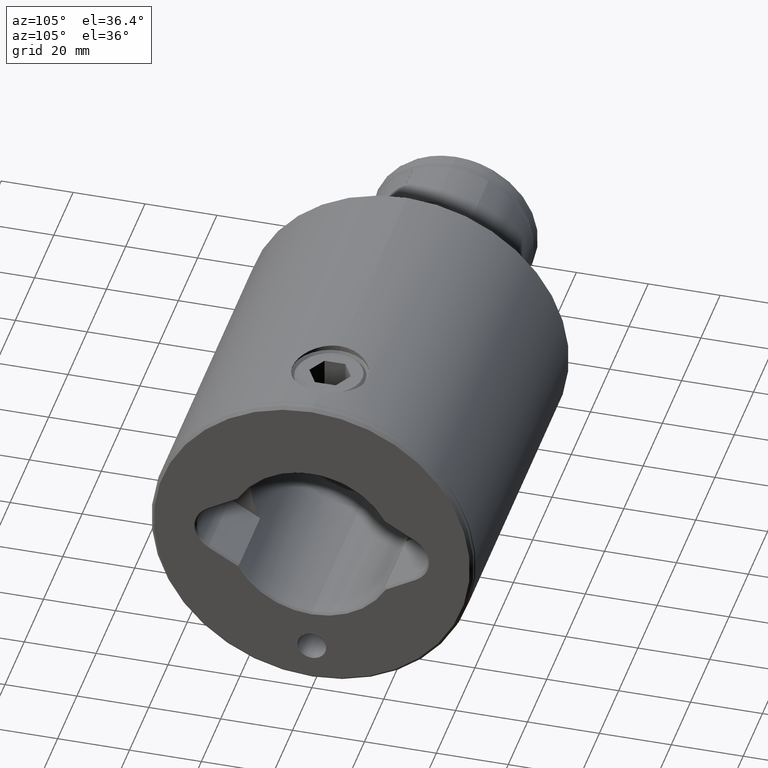
[diagram: clean part render]
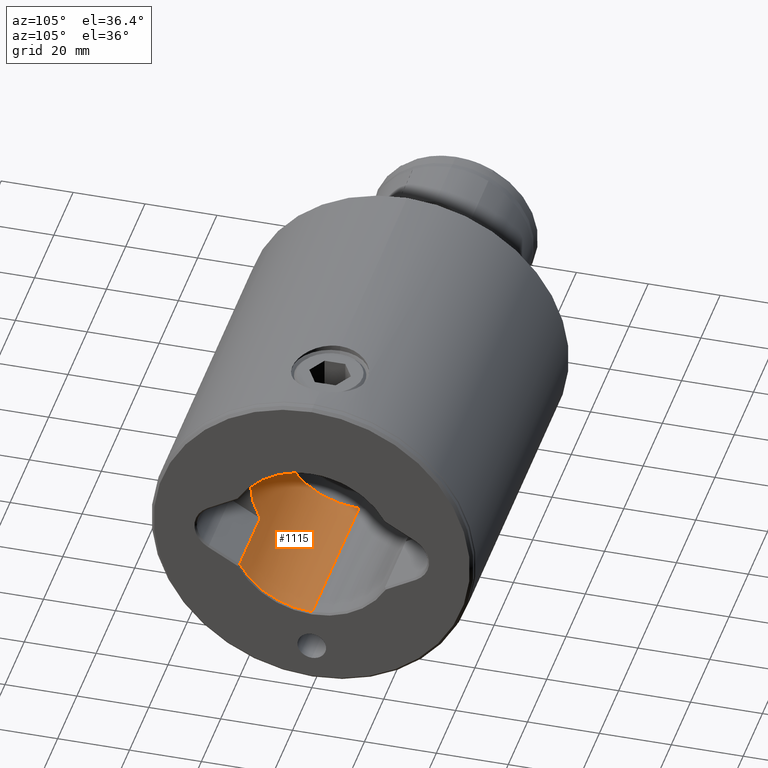
[diagram: same view with one face highlighted and labeled with its STEP entity id]
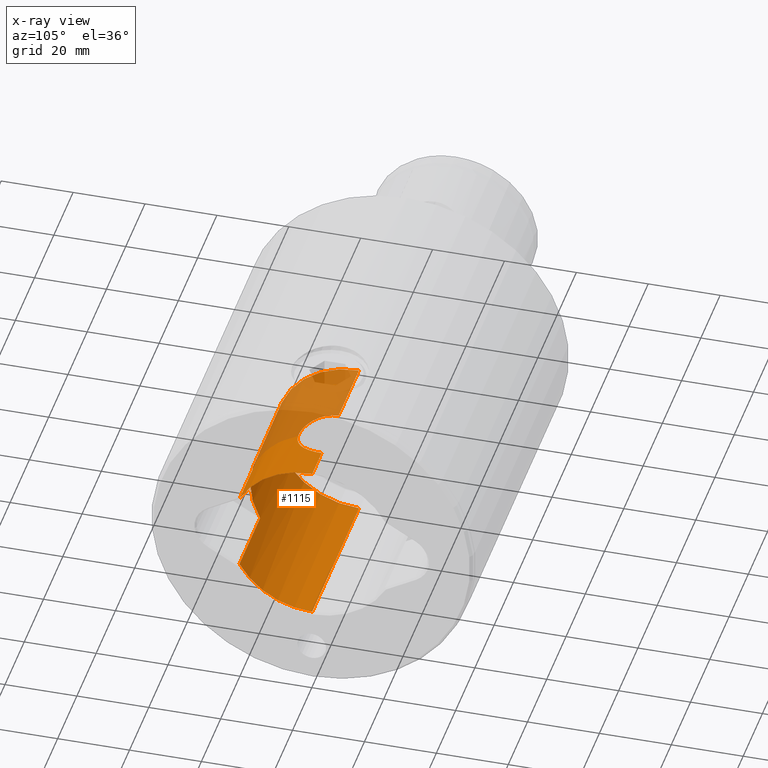
[diagram: x-ray of the same camera — body ghosted, the highlighted face saturated]
A machine part, auxiliary view. The second image highlights one B-rep face of the part: STEP entity #1115.
The next image is the same camera in x-ray: the body ghosted, the highlighted face saturated — about 23% of this face is hidden behind the body in this view.
In plain terms, the highlighted cylindrical surface (partial cylindrical patch) has radius 23 mm, axis along (1, -0, -0).
Its self-contained STEP definition (entity closure, byte-faithful):
#63 = VECTOR ( 'NONE', #3675, 1000.000000000000000 ) ;
#95 = ORIENTED_EDGE ( 'NONE', *, *, #1780, .T. ) ;
#163 = CARTESIAN_POINT ( 'NONE',  ( -23.00000000000000000, 0.0000000000000000000, 0.5000000000000004400 ) ) ;
#262 = AXIS2_PLACEMENT_3D ( 'NONE', #646, #2929, #1775 ) ;
#263 = CARTESIAN_POINT ( 'NONE',  ( 22.71288516212993300, -3.632673777145970700, 27.01544322031126200 ) ) ;
#266 = DIRECTION ( 'NONE',  ( -1.000000000000000000, 0.0000000000000000000, 0.0000000000000000000 ) ) ;
#296 = CARTESIAN_POINT ( 'NONE',  ( 22.88887802677951600, -2.274991333027795500, 10.59604864264739800 ) ) ;
#311 = CARTESIAN_POINT ( 'NONE',  ( 21.62219281856338800, -7.842287163276952600, 15.15860680552610700 ) ) ;
#321 = CIRCLE ( 'NONE', #4365, 23.00000000000000000 ) ;
#391 = CARTESIAN_POINT ( 'NONE',  ( 23.00000000000000000, 2.816687638038912400E-015, 49.00000000000000000 ) ) ;
#431 = ORIENTED_EDGE ( 'NONE', *, *, #2059, .T. ) ;
#471 = AXIS2_PLACEMENT_3D ( 'NONE', #1359, #2141, #1757 ) ;
#566 = LINE ( 'NONE', #2043, #2041 ) ;
#646 = CARTESIAN_POINT ( 'NONE',  ( 0.0000000000000000000, 0.0000000000000000000, 49.00000000000000000 ) ) ;
#650 = VERTEX_POINT ( 'NONE', #3286 ) ;
#665 = CARTESIAN_POINT ( 'NONE',  ( 21.71756673812987900, -7.574158781722401200, 23.44047812966465100 ) ) ;
#698 = CARTESIAN_POINT ( 'NONE',  ( 21.45180685189207600, -8.299114286559399600, 21.88124137616247800 ) ) ;
#717 = CARTESIAN_POINT ( 'NONE',  ( 22.26520714237246800, -5.771678518780896100, 12.46731487507836400 ) ) ;
#722 = VERTEX_POINT ( 'NONE', #1286 ) ;
#738 = CIRCLE ( 'NONE', #471, 23.00000000000000000 ) ;
#849 = VERTEX_POINT ( 'NONE', #391 ) ;
#858 = EDGE_CURVE ( 'NONE', #2560, #722, #321, .T. ) ;
#877 = VECTOR ( 'NONE', #2718, 1000.000000000000000 ) ;
#941 = CIRCLE ( 'NONE', #2143, 23.00000000000000000 ) ;
#1079 = CARTESIAN_POINT ( 'NONE',  ( 22.42825063495070400, -5.102122119146010900, 11.93584695380412200 ) ) ;
#1113 = CARTESIAN_POINT ( 'NONE',  ( 21.76824976902437600, -7.427708185278817200, 23.68375969506325900 ) ) ;
#1115 = ADVANCED_FACE ( 'NONE', ( #4939 ), #4747, .F. ) ;
#1130 = CARTESIAN_POINT ( 'NONE',  ( 22.04073016355848900, -6.586346428075415800, 13.26167871109914600 ) ) ;
#1161 = LINE ( 'NONE', #2313, #4282 ) ;
#1171 = CARTESIAN_POINT ( 'NONE',  ( 23.00000000000000000, 2.816687638038912400E-015, 56.00000000000000000 ) ) ;
#1214 = CARTESIAN_POINT ( 'NONE',  ( 0.0000000000000000000, 0.0000000000000000000, 56.00000000000000000 ) ) ;
#1286 = CARTESIAN_POINT ( 'NONE',  ( 10.91466260670261500, -20.24524981771891400, 22.00000000000000000 ) ) ;
#1359 = CARTESIAN_POINT ( 'NONE',  ( 0.0000000000000000000, 0.0000000000000000000, 0.5000000000000004400 ) ) ;
#1396 = CARTESIAN_POINT ( 'NONE',  ( 0.0000000000000000000, 0.0000000000000000000, 22.00000000000000000 ) ) ;
#1424 = VECTOR ( 'NONE', #2021, 1000.000000000000000 ) ;
#1458 = CARTESIAN_POINT ( 'NONE',  ( 21.36308405999551900, -8.521878816000063100, 17.04398447872623000 ) ) ;
#1476 = CARTESIAN_POINT ( 'NONE',  ( 22.82762974630819000, -2.824118102276766100, 10.76330970397540700 ) ) ;
#1495 = CARTESIAN_POINT ( 'NONE',  ( 23.00000000000000000, -0.2875735190609651200, 27.79999999999999700 ) ) ;
#1509 = CARTESIAN_POINT ( 'NONE',  ( 22.37498361936917100, -5.330274856878553200, 12.10506037980532100 ) ) ;
#1518 = VERTEX_POINT ( 'NONE', #4980 ) ;
#1667 = ORIENTED_EDGE ( 'NONE', *, *, #4434, .T. ) ;
#1757 = DIRECTION ( 'NONE',  ( 1.000000000000000000, 0.0000000000000000000, 0.0000000000000000000 ) ) ;
#1775 = DIRECTION ( 'NONE',  ( -1.000000000000000000, 0.0000000000000000000, 0.0000000000000000000 ) ) ;
#1780 = EDGE_CURVE ( 'NONE', #2444, #2869, #566, .T. ) ;
#1870 = CARTESIAN_POINT ( 'NONE',  ( 21.92870612636586400, -6.945786562761168300, 13.69807058700025400 ) ) ;
#1886 = CARTESIAN_POINT ( 'NONE',  ( 21.92564037432627100, -6.955320391244699300, 24.38913189986337200 ) ) ;
#1903 = CARTESIAN_POINT ( 'NONE',  ( 22.79206663044272200, -3.097410922144091700, 10.86150107023727100 ) ) ;
#1911 = DIRECTION ( 'NONE',  ( 0.0000000000000000000, 0.0000000000000000000, 1.000000000000000000 ) ) ;
#1925 = EDGE_CURVE ( 'NONE', #2560, #1518, #4682, .T. ) ;
#2021 = DIRECTION ( 'NONE',  ( -0.0000000000000000000, -0.0000000000000000000, -1.000000000000000000 ) ) ;
#2041 = VECTOR ( 'NONE', #3747, 1000.000000000000000 ) ;
#2043 = CARTESIAN_POINT ( 'NONE',  ( 23.00000000000000000, 2.816687638038912400E-015, 56.00000000000000000 ) ) ;
#2059 = EDGE_CURVE ( 'NONE', #1518, #2125, #941, .T. ) ;
#2125 = VERTEX_POINT ( 'NONE', #163 ) ;
#2141 = DIRECTION ( 'NONE',  ( 0.0000000000000000000, 0.0000000000000000000, -1.000000000000000000 ) ) ;
#2143 = AXIS2_PLACEMENT_3D ( 'NONE', #4774, #2419, #2806 ) ;
#2183 = EDGE_CURVE ( 'NONE', #4520, #2125, #2404, .T. ) ;
#2221 = CARTESIAN_POINT ( 'NONE',  ( 21.45734177185892500, -8.281947585342653200, 16.21195973305168900 ) ) ;
#2225 = EDGE_CURVE ( 'NONE', #4520, #849, #2278, .T. ) ;
#2251 = CARTESIAN_POINT ( 'NONE',  ( 22.83033668418509900, -2.839297716657105800, 27.34634295005043100 ) ) ;
#2275 = CARTESIAN_POINT ( 'NONE',  ( 22.57681790849747100, -4.399241540183116900, 26.61911899313481600 ) ) ;
#2278 = CIRCLE ( 'NONE', #262, 23.00000000000000000 ) ;
#2289 = CARTESIAN_POINT ( 'NONE',  ( 22.26384805867838100, -5.787694061097093700, 25.63731536623407300 ) ) ;
#2298 = CARTESIAN_POINT ( 'NONE',  ( 23.00000000000000000, 2.816687638038912400E-015, 0.5000000000000004400 ) ) ;
#2313 = CARTESIAN_POINT ( 'NONE',  ( 10.91466260670261700, -20.24524981771891100, 56.00000000000000000 ) ) ;
#2353 = CARTESIAN_POINT ( 'NONE',  ( 23.00000000000000000, 2.816915103184660800E-015, 27.79999999999999400 ) ) ;
#2391 = EDGE_CURVE ( 'NONE', #5036, #2444, #3726, .T. ) ;
#2404 = LINE ( 'NONE', #2907, #63 ) ;
#2419 = DIRECTION ( 'NONE',  ( 0.0000000000000000000, 0.0000000000000000000, -1.000000000000000000 ) ) ;
#2444 = VERTEX_POINT ( 'NONE', #2614 ) ;
#2467 = LINE ( 'NONE', #1171, #1424 ) ;
#2494 = ORIENTED_EDGE ( 'NONE', *, *, #2225, .T. ) ;
#2560 = VERTEX_POINT ( 'NONE', #3926 ) ;
#2614 = CARTESIAN_POINT ( 'NONE',  ( 23.00000000000000000, 9.001787135371156300E-016, 10.30000000000000800 ) ) ;
#2634 = CARTESIAN_POINT ( 'NONE',  ( 21.29429480799158700, -8.692992871643490100, 17.89655202185650400 ) ) ;
#2652 = CARTESIAN_POINT ( 'NONE',  ( 22.58122504471546000, -4.395518414396345700, 11.46295758531618100 ) ) ;
#2663 = CARTESIAN_POINT ( 'NONE',  ( 23.00000000000000000, 2.816915103184660800E-015, 27.79999999999999400 ) ) ;
#2680 = EDGE_LOOP ( 'NONE', ( #2494, #3110, #3135, #95, #4781, #1667, #3360, #3732, #431, #4457 ) ) ;
#2718 = DIRECTION ( 'NONE',  ( -0.0000000000000000000, -0.0000000000000000000, -1.000000000000000000 ) ) ;
#2806 = DIRECTION ( 'NONE',  ( 1.000000000000000000, 0.0000000000000000000, 0.0000000000000000000 ) ) ;
#2869 = VERTEX_POINT ( 'NONE', #2298 ) ;
#2907 = CARTESIAN_POINT ( 'NONE',  ( -23.00000000000000000, 0.0000000000000000000, 56.00000000000000000 ) ) ;
#2929 = DIRECTION ( 'NONE',  ( -0.0000000000000000000, -0.0000000000000000000, 1.000000000000000000 ) ) ;
#3019 = CARTESIAN_POINT ( 'NONE',  ( 22.52773258895052100, -4.643206901414582300, 26.47183641601423400 ) ) ;
#3034 = CARTESIAN_POINT ( 'NONE',  ( 22.67414366027472300, -3.895154952226822100, 11.19365578201192700 ) ) ;
#3048 = CARTESIAN_POINT ( 'NONE',  ( 22.97778448966057900, -1.156520452887775300, 10.35793981687617000 ) ) ;
#3072 = CARTESIAN_POINT ( 'NONE',  ( 22.20886233334358600, -5.984134875815137800, 12.65991702388818200 ) ) ;
#3091 = CARTESIAN_POINT ( 'NONE',  ( 22.97297859527280700, -1.151208406178799900, 27.72876393952822100 ) ) ;
#3110 = ORIENTED_EDGE ( 'NONE', *, *, #3412, .T. ) ;
#3135 = ORIENTED_EDGE ( 'NONE', *, *, #2391, .T. ) ;
#3207 = DIRECTION ( 'NONE',  ( -1.000000000000000000, 0.0000000000000000000, 0.0000000000000000000 ) ) ;
#3227 = CARTESIAN_POINT ( 'NONE',  ( -23.00000000000000000, 0.0000000000000000000, 49.00000000000000000 ) ) ;
#3286 = CARTESIAN_POINT ( 'NONE',  ( 10.91466260670261700, -20.24524981771891100, 0.5000000000000073300 ) ) ;
#3360 = ORIENTED_EDGE ( 'NONE', *, *, #858, .F. ) ;
#3409 = CARTESIAN_POINT ( 'NONE',  ( 21.49473138551428200, -8.184760377247297200, 15.94297152353631100 ) ) ;
#3412 = EDGE_CURVE ( 'NONE', #849, #5036, #2467, .T. ) ;
#3427 = CARTESIAN_POINT ( 'NONE',  ( 21.62138156482094700, -7.844516907005077800, 22.93686685564577800 ) ) ;
#3447 = CARTESIAN_POINT ( 'NONE',  ( 21.57715607739643100, -7.964930343703223900, 15.41629486522787800 ) ) ;
#3459 = CARTESIAN_POINT ( 'NONE',  ( 22.95658727455546400, -1.440829952230388700, 27.68540357794187300 ) ) ;
#3471 = CARTESIAN_POINT ( 'NONE',  ( 21.71858832367338700, -7.571235794850879900, 14.65445708881543000 ) ) ;
#3544 = DIRECTION ( 'NONE',  ( -0.0000000000000000000, -0.0000000000000000000, -1.000000000000000000 ) ) ;
#3675 = DIRECTION ( 'NONE',  ( -0.0000000000000000000, -0.0000000000000000000, -1.000000000000000000 ) ) ;
#3726 = B_SPLINE_CURVE_WITH_KNOTS ( 'NONE', 3,
 ( #2663, #1495, #4211, #3091, #3459, #4230, #2251, #263, #4613, #2275, #3019, #4646, #2289, #4990, #1886, #1113, #665, #3427, #3812, #698, #3830, #4628, #3843, #4260, #2634, #1458, #5005, #2221, #3409, #3447, #311, #3471, #5022, #1870, #1130, #3072, #717, #1509, #1079, #2652, #3034, #1903, #1476, #296, #3860, #3048, #4247, #5043 ),
 .UNSPECIFIED., .F., .F.,
 ( 4, 2, 2, 2, 2, 2, 2, 2, 2, 2, 2, 2, 2, 2, 2, 2, 2, 2, 2, 2, 2, 2, 2, 4 ),
 ( 0.02761925400648433300, 0.02848218539537443100, 0.02934511678426452600, 0.03107097956204471800, 0.03193391095093481300, 0.03279684233982491100, 0.03452270511760510000, 0.03624856789538528900, 0.03711149928427538000, 0.03797443067316547100, 0.03970029345094565300, 0.04142615622872582900, 0.04315201900650600400, 0.04401495039539609500, 0.04487788178428618600, 0.04574081317317628400, 0.04660374456206637500, 0.04832960733984656400, 0.04919253872873665500, 0.05005547011762674600, 0.05178133289540694200, 0.05264426428429704000, 0.05350719567318713800, 0.05523305845096732800 ),
 .UNSPECIFIED. ) ;
#3732 = ORIENTED_EDGE ( 'NONE', *, *, #1925, .T. ) ;
#3747 = DIRECTION ( 'NONE',  ( -0.0000000000000000000, -0.0000000000000000000, -1.000000000000000000 ) ) ;
#3752 = EDGE_CURVE ( 'NONE', #2869, #650, #738, .T. ) ;
#3812 = CARTESIAN_POINT ( 'NONE',  ( 21.57572593888273000, -7.968806623220771700, 22.67530032129475600 ) ) ;
#3830 = CARTESIAN_POINT ( 'NONE',  ( 21.38561681404902300, -8.465827704433426200, 21.33521808283151000 ) ) ;
#3843 = CARTESIAN_POINT ( 'NONE',  ( 21.27046522048600600, -8.750274818143992700, 19.62252292294828800 ) ) ;
#3860 = CARTESIAN_POINT ( 'NONE',  ( 22.91481805459439900, -1.997534337037223200, 10.52626290770264500 ) ) ;
#3926 = CARTESIAN_POINT ( 'NONE',  ( -10.91466260670263100, -20.24524981771890400, 22.00000000000000000 ) ) ;
#4136 = DIRECTION ( 'NONE',  ( -0.0000000000000000000, -0.0000000000000000000, 1.000000000000000000 ) ) ;
#4211 = CARTESIAN_POINT ( 'NONE',  ( 22.99460856943952100, -0.5753286639633868900, 27.78585835742168800 ) ) ;
#4230 = CARTESIAN_POINT ( 'NONE',  ( 22.89261526824498500, -2.291664714180627000, 27.51436745767110600 ) ) ;
#4247 = CARTESIAN_POINT ( 'NONE',  ( 22.99999999999999600, -0.5839550093151145700, 10.30000000000000600 ) ) ;
#4260 = CARTESIAN_POINT ( 'NONE',  ( 21.27069214565396000, -8.749723180407739800, 18.46910744833353500 ) ) ;
#4282 = VECTOR ( 'NONE', #1911, 1000.000000000000000 ) ;
#4365 = AXIS2_PLACEMENT_3D ( 'NONE', #1396, #4136, #266 ) ;
#4434 = EDGE_CURVE ( 'NONE', #650, #722, #1161, .T. ) ;
#4457 = ORIENTED_EDGE ( 'NONE', *, *, #2183, .F. ) ;
#4520 = VERTEX_POINT ( 'NONE', #3227 ) ;
#4613 = CARTESIAN_POINT ( 'NONE',  ( 22.66947156895237800, -3.893724667562507700, 26.89116041631097400 ) ) ;
#4628 = CARTESIAN_POINT ( 'NONE',  ( 21.29472471465903600, -8.691924100300132800, 20.20884245774581700 ) ) ;
#4646 = CARTESIAN_POINT ( 'NONE',  ( 22.37433650792814200, -5.349905564065900300, 25.99716596298471000 ) ) ;
#4682 = LINE ( 'NONE', #5080, #877 ) ;
#4747 = CYLINDRICAL_SURFACE ( 'NONE', #5065, 23.00000000000000000 ) ;
#4774 = CARTESIAN_POINT ( 'NONE',  ( 0.0000000000000000000, 0.0000000000000000000, 0.5000000000000004400 ) ) ;
#4781 = ORIENTED_EDGE ( 'NONE', *, *, #3752, .T. ) ;
#4939 = FACE_OUTER_BOUND ( 'NONE', #2680, .T. ) ;
#4980 = CARTESIAN_POINT ( 'NONE',  ( -10.91466260670263100, -20.24524981771890400, 0.5000000000000073300 ) ) ;
#4990 = CARTESIAN_POINT ( 'NONE',  ( 22.03774443401200900, -6.596525842134540500, 24.82719422324828100 ) ) ;
#5005 = CARTESIAN_POINT ( 'NONE',  ( 21.39157830376049000, -8.450357944774209400, 16.76164273585297700 ) ) ;
#5022 = CARTESIAN_POINT ( 'NONE',  ( 21.77010111641552500, -7.422312525017440000, 14.40748703445423500 ) ) ;
#5036 = VERTEX_POINT ( 'NONE', #2353 ) ;
#5043 = CARTESIAN_POINT ( 'NONE',  ( 23.00000000000000000, 9.001787135371156300E-016, 10.30000000000000800 ) ) ;
#5065 = AXIS2_PLACEMENT_3D ( 'NONE', #1214, #3544, #3207 ) ;
#5080 = CARTESIAN_POINT ( 'NONE',  ( -10.91466260670263100, -20.24524981771890400, 56.00000000000000000 ) ) ;